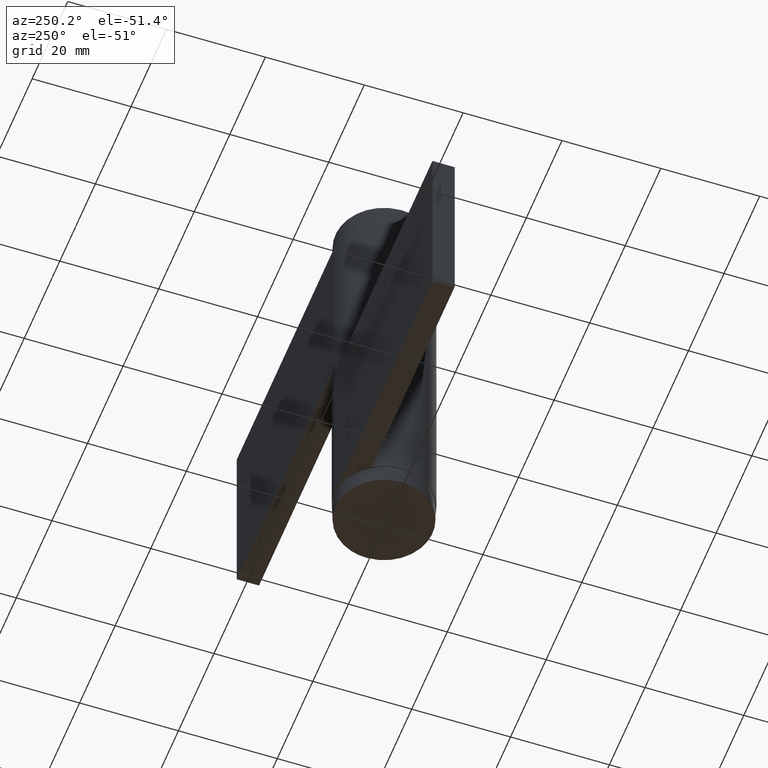
[diagram: clean part render]
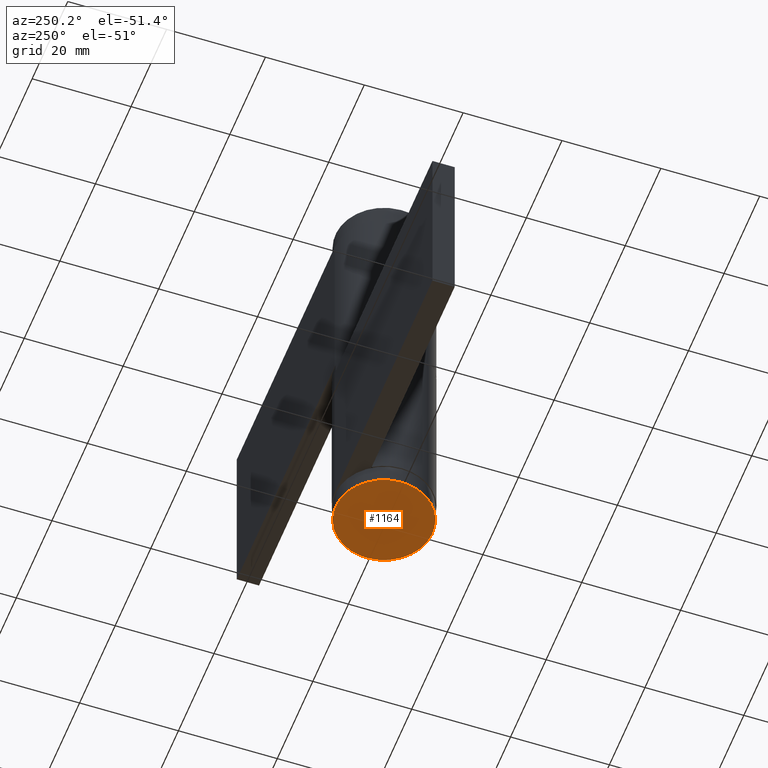
[diagram: same view with one face highlighted and labeled with its STEP entity id]
A machine part, auxiliary view. The second image highlights one B-rep face of the part: STEP entity #1164.
In plain terms, the highlighted face is a freeform B-spline surface patch.
Its self-contained STEP definition (entity closure, byte-faithful):
#1118=CARTESIAN_POINT('',(-9.797958972278190,0.0,-3.999999994388345));
#1119=VERTEX_POINT('',#1118);
#1120=CARTESIAN_POINT('',(9.797958972278190,0.0,-3.999999994388345));
#1121=VERTEX_POINT('',#1120);
#1122=CARTESIAN_POINT('',(-9.797958972278190,0.0,-3.999999994388345));
#1123=CARTESIAN_POINT('',(-9.797958972278190,9.797958972278190,-3.999999994388346));
#1124=CARTESIAN_POINT('',(0.0,9.797958972278190,-3.999999994388345));
#1125=CARTESIAN_POINT('',(9.797958972278190,9.797958972278190,-3.999999994388346));
#1126=CARTESIAN_POINT('',(9.797958972278190,0.0,-3.999999994388345));
#1134=(BOUNDED_CURVE()B_SPLINE_CURVE(2,(#1122,#1123,#1124,#1125,#1126),.UNSPECIFIED.,.F.,.U.)B_SPLINE_CURVE_WITH_KNOTS((3,2,3),(0.0,0.250000000000000,0.500000000000000),.UNSPECIFIED.)CURVE()GEOMETRIC_REPRESENTATION_ITEM()RATIONAL_B_SPLINE_CURVE((1.0,0.707106781186547,1.0,0.707106781186547,1.0))REPRESENTATION_ITEM(''));
#1135=EDGE_CURVE('',#1119,#1121,#1134,.T.);
#1137=CARTESIAN_POINT('',(9.797958972278190,0.0,-3.999999994388345));
#1138=CARTESIAN_POINT('',(9.797958972278190,-9.797958972278190,-3.999999994388346));
#1139=CARTESIAN_POINT('',(0.0,-9.797958972278190,-3.999999994388345));
#1140=CARTESIAN_POINT('',(-9.797958972278190,-9.797958972278190,-3.999999994388346));
#1141=CARTESIAN_POINT('',(-9.797958972278190,0.0,-3.999999994388345));
#1149=(BOUNDED_CURVE()B_SPLINE_CURVE(2,(#1137,#1138,#1139,#1140,#1141),.UNSPECIFIED.,.F.,.U.)B_SPLINE_CURVE_WITH_KNOTS((3,2,3),(0.500000000000000,0.750000000000000,1.0),.UNSPECIFIED.)CURVE()GEOMETRIC_REPRESENTATION_ITEM()RATIONAL_B_SPLINE_CURVE((1.0,0.707106781186547,1.0,0.707106781186547,1.0))REPRESENTATION_ITEM(''));
#1150=EDGE_CURVE('',#1121,#1119,#1149,.T.);
#1155=CARTESIAN_POINT('',(10.776775403533000,-10.776775403532980,-3.999999997194175));
#1156=CARTESIAN_POINT('',(-10.776775578734160,-10.776775403532980,-3.999999997194175));
#1157=CARTESIAN_POINT('',(10.776775403533000,10.776775578734140,-3.999999997194175));
#1158=CARTESIAN_POINT('',(-10.776775578734160,10.776775578734140,-3.999999997194175));
#1159=B_SPLINE_SURFACE_WITH_KNOTS('',1,1,((#1155,#1157),(#1156,#1158)),.UNSPECIFIED.,.F.,.F.,.U.,(2,2),(2,2),(0.0,21.553550982267168),(0.0,21.553550982267119),.UNSPECIFIED.);
#1160=ORIENTED_EDGE('',*,*,#1135,.T.);
#1161=ORIENTED_EDGE('',*,*,#1150,.T.);
#1162=EDGE_LOOP('',(#1160,#1161));
#1163=FACE_OUTER_BOUND('',#1162,.T.);
#1164=ADVANCED_FACE('',(#1163),#1159,.T.);